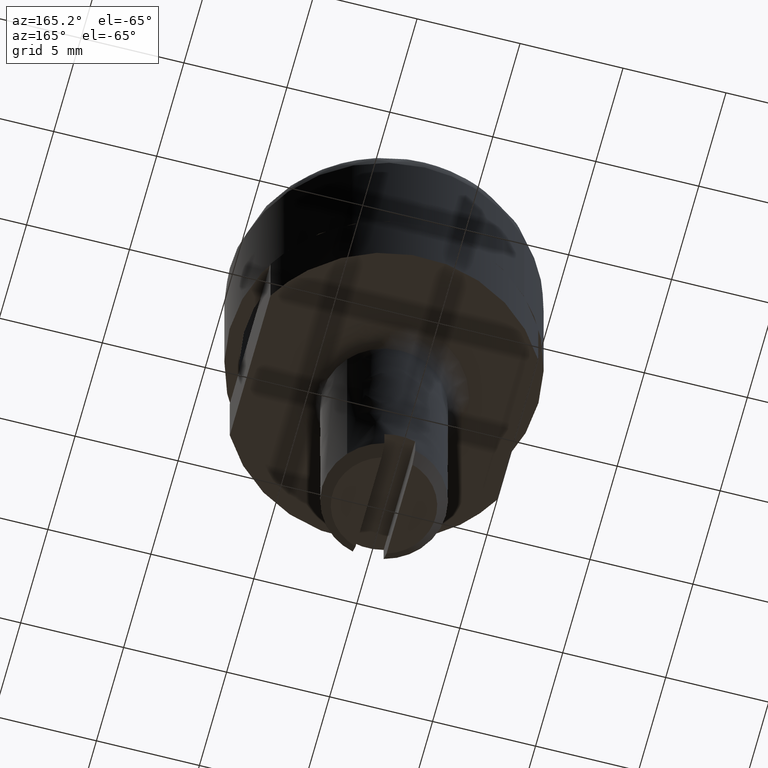
[diagram: clean part render]
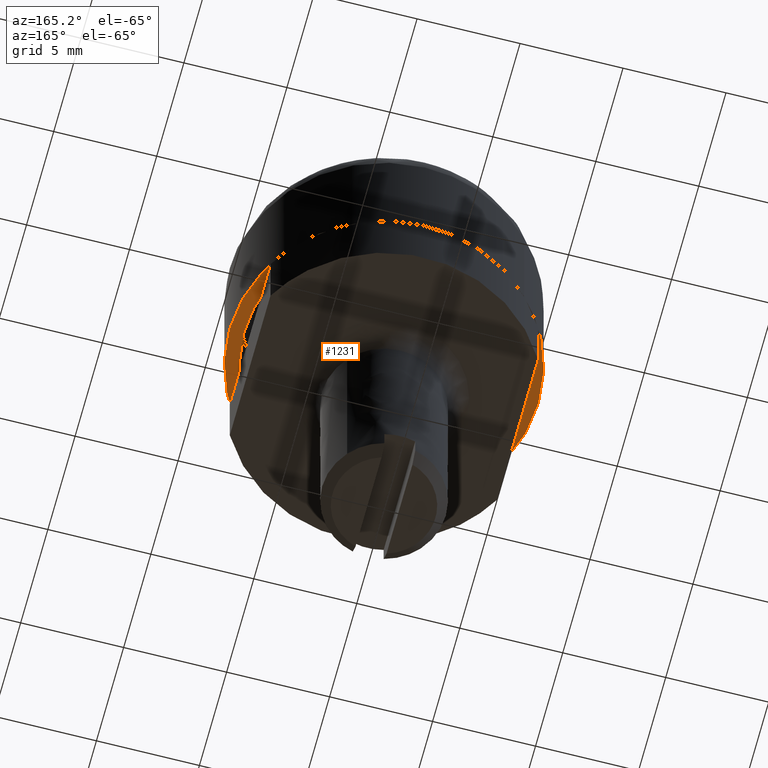
[diagram: same view with one face highlighted and labeled with its STEP entity id]
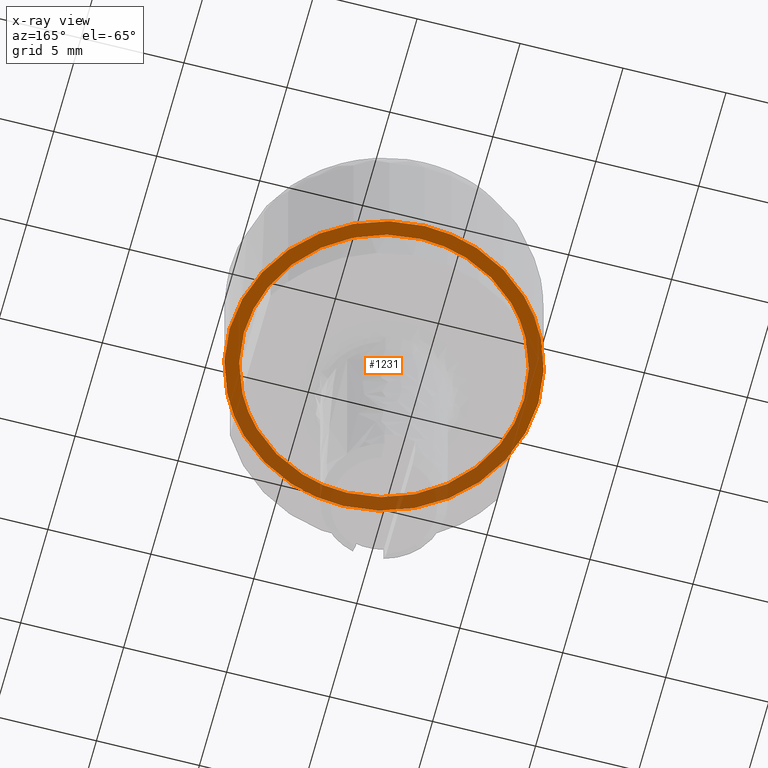
[diagram: x-ray of the same camera — body ghosted, the highlighted face saturated]
A machine part, auxiliary view. The second image highlights one B-rep face of the part: STEP entity #1231.
The next image is the same camera in x-ray: the body ghosted, the highlighted face saturated — about 41% of this face is hidden behind the body in this view.
In plain terms, the highlighted face is a freeform B-spline surface patch.
Its self-contained STEP definition (entity closure, byte-faithful):
#914=CARTESIAN_POINT('',(-4.932545663887593,4.680811072878793,0.0));
#915=VERTEX_POINT('',#914);
#921=CARTESIAN_POINT('',(0.000000286769174,6.799999999999995,0.0));
#922=VERTEX_POINT('',#921);
#923=CARTESIAN_POINT('',(-4.932545663887593,4.680811072878793,0.0));
#924=CARTESIAN_POINT('',(-4.714912347619990,4.910166091634215,0.0));
#925=CARTESIAN_POINT('',(-4.236954883401083,5.348174126833015,0.0));
#926=CARTESIAN_POINT('',(-3.439677311985118,5.892667430260793,0.0));
#927=CARTESIAN_POINT('',(-2.612063875126257,6.299107404190968,0.0));
#928=CARTESIAN_POINT('',(-1.889300119238368,6.543863059924363,0.0));
#929=CARTESIAN_POINT('',(-1.034746525995126,6.742395398111656,0.0));
#930=CARTESIAN_POINT('',(-0.431155632645939,6.800051775636590,0.0));
#931=CARTESIAN_POINT('',(0.000000286769174,6.799999999999995,0.0));
#932=B_SPLINE_CURVE_WITH_KNOTS('',3,(#923,#924,#925,#926,#927,#928,#929,#930,#931),.UNSPECIFIED.,.F.,.U.,(4,1,1,1,1,1,4),(4.990039E-009,0.948531333499347,1.940184939206418,2.888713104333475,3.707901624160262,4.225285891425965,5.518740586311926),.UNSPECIFIED.);
#933=EDGE_CURVE('',#915,#922,#932,.T.);
#935=CARTESIAN_POINT('',(6.800000000000000,0.0,0.0));
#936=VERTEX_POINT('',#935);
#937=CARTESIAN_POINT('',(0.000000286769174,6.799999999999995,0.0));
#938=CARTESIAN_POINT('',(0.417244344295607,6.800047325130983,0.0));
#939=CARTESIAN_POINT('',(1.126538177255468,6.734497145074095,0.0));
#940=CARTESIAN_POINT('',(2.126197797199553,6.480838133158592,0.0));
#941=CARTESIAN_POINT('',(2.850275435846903,6.188685520264716,0.0));
#942=CARTESIAN_POINT('',(3.549905462858949,5.814727373327851,0.0));
#943=CARTESIAN_POINT('',(4.138583930866588,5.416133431944608,0.0));
#944=CARTESIAN_POINT('',(4.822247767233452,4.822754273552527,0.0));
#945=CARTESIAN_POINT('',(5.386020270343711,4.185169255291944,0.0));
#946=CARTESIAN_POINT('',(5.873546371291537,3.455506358265204,0.0));
#947=CARTESIAN_POINT('',(6.262624717510242,2.699963852938090,0.0));
#948=CARTESIAN_POINT('',(6.535121922447948,1.938388062796501,0.0));
#949=CARTESIAN_POINT('',(6.745378261817022,1.015273404557894,0.0));
#950=CARTESIAN_POINT('',(6.800043587585367,0.403337723911392,0.0));
#951=CARTESIAN_POINT('',(6.800000000000000,0.0,0.0));
#952=B_SPLINE_CURVE_WITH_KNOTS('',3,(#937,#938,#939,#940,#941,#942,#943,#944,#945,#946,#947,#948,#949,#950,#951),.UNSPECIFIED.,.F.,.U.,(4,1,1,1,1,1,1,1,1,1,1,1,4),(0.000000017237889,1.251723370826092,2.127941067955904,3.087603355722131,3.588296059865767,4.506229548907771,5.215547964612382,6.300374684145703,7.051409290417492,7.844175674494007,8.845564706493141,9.471429594500629,10.681431616617321),.UNSPECIFIED.);
#953=EDGE_CURVE('',#922,#936,#952,.T.);
#955=CARTESIAN_POINT('',(4.932545663887543,-4.680811072878747,0.0));
#956=VERTEX_POINT('',#955);
#957=CARTESIAN_POINT('',(6.800000000000000,0.0,0.0));
#958=CARTESIAN_POINT('',(6.800007914878444,-0.282334395524479,0.0));
#959=CARTESIAN_POINT('',(6.763946193497152,-0.860445636910743,0.0));
#960=CARTESIAN_POINT('',(6.598731904197352,-1.720473206763375,0.0));
#961=CARTESIAN_POINT('',(6.339962090634941,-2.500532818326803,0.0));
#962=CARTESIAN_POINT('',(5.993205833017306,-3.244884842324742,0.0));
#963=CARTESIAN_POINT('',(5.548376059577596,-3.967797531974441,0.0));
#964=CARTESIAN_POINT('',(5.154665493333746,-4.446765098286518,0.0));
#965=CARTESIAN_POINT('',(4.932545663887543,-4.680811072878747,0.0));
#966=B_SPLINE_CURVE_WITH_KNOTS('',3,(#957,#958,#959,#960,#961,#962,#963,#964,#965),.UNSPECIFIED.,.F.,.U.,(4,1,1,1,1,1,4),(4.127542E-009,0.847003301440743,1.734343272202446,2.621673944381036,3.307348116324191,4.194687560928379,5.162691478323008),.UNSPECIFIED.);
#967=EDGE_CURVE('',#936,#956,#966,.T.);
#1073=CARTESIAN_POINT('',(-0.000000286769450,-6.799999999999993,0.0));
#1074=VERTEX_POINT('',#1073);
#1075=CARTESIAN_POINT('',(4.932545663887543,-4.680811072878747,0.0));
#1076=CARTESIAN_POINT('',(4.695130568718285,-4.931020375776530,0.0));
#1077=CARTESIAN_POINT('',(4.171428785223509,-5.404869612836414,0.0));
#1078=CARTESIAN_POINT('',(3.315314786257923,-5.965958183405297,0.0));
#1079=CARTESIAN_POINT('',(2.333695541565671,-6.417532225965711,0.0));
#1080=CARTESIAN_POINT('',(1.235956245217417,-6.724464236658458,0.0));
#1081=CARTESIAN_POINT('',(0.416780522118094,-6.800034993220883,0.0));
#1082=CARTESIAN_POINT('',(-0.000000286769450,-6.799999999999993,0.0));
#1083=B_SPLINE_CURVE_WITH_KNOTS('',3,(#1075,#1076,#1077,#1078,#1079,#1080,#1081,#1082),.UNSPECIFIED.,.F.,.U.,(4,1,1,1,1,4),(4.988460E-009,1.034763151721214,2.112646557074670,3.061175266426393,4.268401539935868,5.518740586312186),.UNSPECIFIED.);
#1084=EDGE_CURVE('',#956,#1074,#1083,.T.);
#1086=CARTESIAN_POINT('',(-6.800000000000000,0.0,0.0));
#1087=VERTEX_POINT('',#1086);
#1088=CARTESIAN_POINT('',(-0.000000286769450,-6.799999999999993,0.0));
#1089=CARTESIAN_POINT('',(-0.486793500365736,-6.800093671322914,0.0));
#1090=CARTESIAN_POINT('',(-1.182155841994502,-6.724989087726920,0.0));
#1091=CARTESIAN_POINT('',(-2.177615531105174,-6.459342290289362,0.0));
#1092=CARTESIAN_POINT('',(-2.967494401287906,-6.143470628086659,0.0));
#1093=CARTESIAN_POINT('',(-3.728940360868344,-5.705912668706158,0.0));
#1094=CARTESIAN_POINT('',(-4.409745620349870,-5.197742662826835,0.0));
#1095=CARTESIAN_POINT('',(-4.965017044805882,-4.669085175292995,0.0));
#1096=CARTESIAN_POINT('',(-5.472293439099191,-4.058631230656217,0.0));
#1097=CARTESIAN_POINT('',(-5.919164586440645,-3.385400870243343,0.0));
#1098=CARTESIAN_POINT('',(-6.294555876449387,-2.622218661925441,0.0));
#1099=CARTESIAN_POINT('',(-6.555062947657506,-1.857318598583554,0.0));
#1100=CARTESIAN_POINT('',(-6.747278310810687,-1.001368174908280,0.0));
#1101=CARTESIAN_POINT('',(-6.800035771668408,-0.389426936226279,0.0));
#1102=CARTESIAN_POINT('',(-6.800000000000000,0.0,0.0));
#1103=B_SPLINE_CURVE_WITH_KNOTS('',3,(#1088,#1089,#1090,#1091,#1092,#1093,#1094,#1095,#1096,#1097,#1098,#1099,#1100,#1101,#1102),.UNSPECIFIED.,.F.,.U.,(4,1,1,1,1,1,1,1,1,1,1,1,4),(0.000000017248396,1.460351782376973,2.086214836539144,3.087603355729955,4.005542579444466,4.714860703157688,5.632782677260050,6.300374684150556,7.093137298766982,8.052798215301955,8.845564706495193,9.513157607459192,10.681431616617109),.UNSPECIFIED.);
#1104=EDGE_CURVE('',#1074,#1087,#1103,.T.);
#1106=CARTESIAN_POINT('',(-6.800000000000000,0.0,0.0));
#1107=CARTESIAN_POINT('',(-6.800010877549735,0.309223033663248,0.0));
#1108=CARTESIAN_POINT('',(-6.754996433981941,0.968002905477444,0.0));
#1109=CARTESIAN_POINT('',(-6.557837558040491,1.877300981631680,0.0));
#1110=CARTESIAN_POINT('',(-6.271524898790199,2.661709504493808,0.0));
#1111=CARTESIAN_POINT('',(-5.921321662191361,3.374439236591033,0.0));
#1112=CARTESIAN_POINT('',(-5.490685272635090,4.042788782186998,0.0));
#1113=CARTESIAN_POINT('',(-5.117640330783454,4.485769593887964,0.0));
#1114=CARTESIAN_POINT('',(-4.932545663887593,4.680811072878793,0.0));
#1115=B_SPLINE_CURVE_WITH_KNOTS('',3,(#1106,#1107,#1108,#1109,#1110,#1111,#1112,#1113,#1114),.UNSPECIFIED.,.F.,.U.,(4,1,1,1,1,1,4),(4.126534E-009,0.927669964210613,1.976344836257897,2.783008444970508,3.428348862476418,4.356023286435321,5.162691478323034),.UNSPECIFIED.);
#1116=EDGE_CURVE('',#1087,#915,#1115,.T.);
#1122=CARTESIAN_POINT('',(-8.249249970927089,-8.249249970927078,0.0));
#1123=CARTESIAN_POINT('',(8.249250373258443,-8.249249970927078,0.0));
#1124=CARTESIAN_POINT('',(-8.249249970927089,8.249250373258427,0.0));
#1125=CARTESIAN_POINT('',(8.249250373258443,8.249250373258427,0.0));
#1126=B_SPLINE_SURFACE_WITH_KNOTS('',1,1,((#1122,#1124),(#1123,#1125)),.UNSPECIFIED.,.F.,.F.,.U.,(2,2),(2,2),(0.0,16.498500344185530),(0.0,16.498500344185508),.UNSPECIFIED.);
#1127=CARTESIAN_POINT('',(-7.500000000000000,0.0,0.0));
#1128=VERTEX_POINT('',#1127);
#1129=CARTESIAN_POINT('',(-5.440307707149858,5.162659246110332,-4.302114E-016));
#1130=VERTEX_POINT('',#1129);
#1131=CARTESIAN_POINT('',(-7.500000000000000,0.0,0.0));
#1132=CARTESIAN_POINT('',(-7.500009349291555,0.326225816527274,-2.718484E-017));
#1133=CARTESIAN_POINT('',(-7.454469182849019,1.023165444534629,-8.526177E-017));
#1134=CARTESIAN_POINT('',(-7.270154673125730,1.911264202181624,-1.592682E-016));
#1135=CARTESIAN_POINT('',(-6.985109567290990,2.770539397258085,-2.308728E-016));
#1136=CARTESIAN_POINT('',(-6.609667893890370,3.595597831710558,-2.996261E-016));
#1137=CARTESIAN_POINT('',(-6.075046540080582,4.436237499643954,-3.696777E-016));
#1138=CARTESIAN_POINT('',(-5.644454825888032,4.947538028853219,-4.122851E-016));
#1139=CARTESIAN_POINT('',(-5.440307707149858,5.162659246110332,-4.302114E-016));
#1140=B_SPLINE_CURVE_WITH_KNOTS('',3,(#1131,#1132,#1133,#1134,#1135,#1136,#1137,#1138,#1139),.UNSPECIFIED.,.F.,.U.,(4,1,1,1,1,1,4),(3.951627E-009,0.978679313290159,2.090819025260926,2.713618455353122,3.692294719166312,4.804435557686742,5.694144992032093),.UNSPECIFIED.);
#1141=EDGE_CURVE('',#1128,#1130,#1140,.T.);
#1142=ORIENTED_EDGE('',*,*,#1141,.T.);
#1143=CARTESIAN_POINT('',(0.000000416591547,7.499999999999988,0.0));
#1144=VERTEX_POINT('',#1143);
#1145=CARTESIAN_POINT('',(-5.440307707149858,5.162659246110332,-4.302114E-016));
#1146=CARTESIAN_POINT('',(-5.222088710532297,5.392623772653946,-4.129550E-016));
#1147=CARTESIAN_POINT('',(-4.709876810978301,5.868057628753888,-3.724500E-016));
#1148=CARTESIAN_POINT('',(-3.862153234445573,6.458892787673727,-3.054133E-016));
#1149=CARTESIAN_POINT('',(-2.897079545659081,6.944297873865178,-2.290967E-016));
#1150=CARTESIAN_POINT('',(-1.933653383999820,7.270566165105355,-1.529105E-016));
#1151=CARTESIAN_POINT('',(-0.951065740578369,7.459740223933074,-7.520889E-017));
#1152=CARTESIAN_POINT('',(-0.317022573245680,7.500009679471833,-2.506970E-017));
#1153=CARTESIAN_POINT('',(0.000000416591547,7.499999999999988,0.0));
#1154=B_SPLINE_CURVE_WITH_KNOTS('',3,(#1145,#1146,#1147,#1148,#1149,#1150,#1151,#1152,#1153),.UNSPECIFIED.,.F.,.U.,(4,1,1,1,1,1,4),(4.377245E-009,0.951069379091908,2.092353971124072,3.090971792670792,4.184706727930962,5.135776862650095,6.086846336362240),.UNSPECIFIED.);
#1155=EDGE_CURVE('',#1130,#1144,#1154,.T.);
#1156=ORIENTED_EDGE('',*,*,#1155,.T.);
#1157=CARTESIAN_POINT('',(7.500000000000000,0.0,0.0));
#1158=VERTEX_POINT('',#1157);
#1159=CARTESIAN_POINT('',(0.000000416591547,7.499999999999988,0.0));
#1160=CARTESIAN_POINT('',(0.475536609552828,7.500057812419370,0.0));
#1161=CARTESIAN_POINT('',(1.273184140552888,7.423870547720845,0.0));
#1162=CARTESIAN_POINT('',(2.284745891376791,7.160547509723658,0.0));
#1163=CARTESIAN_POINT('',(3.230492862855162,6.795770914453764,0.0));
#1164=CARTESIAN_POINT('',(4.038638603198545,6.347740008080844,0.0));
#1165=CARTESIAN_POINT('',(4.813893454742874,5.769025563525314,0.0));
#1166=CARTESIAN_POINT('',(5.423556571706696,5.206171587461093,0.0));
#1167=CARTESIAN_POINT('',(6.041501732512944,4.480855132315438,0.0));
#1168=CARTESIAN_POINT('',(6.592378031032567,3.628407463068746,0.0));
#1169=CARTESIAN_POINT('',(7.004963219957057,2.734867049630617,0.0));
#1170=CARTESIAN_POINT('',(7.255496058207909,1.943981995296713,0.0));
#1171=CARTESIAN_POINT('',(7.445814992653824,1.058432710072871,0.0));
#1172=CARTESIAN_POINT('',(7.500043508848298,0.429515812222126,0.0));
#1173=CARTESIAN_POINT('',(7.500000000000000,0.0,0.0));
#1174=B_SPLINE_CURVE_WITH_KNOTS('',3,(#1159,#1160,#1161,#1162,#1163,#1164,#1165,#1166,#1167,#1168,#1169,#1170,#1171,#1172,#1173),.UNSPECIFIED.,.F.,.U.,(4,1,1,1,1,1,1,1,1,1,1,1,4),(0.000000015620786,1.426598191322354,2.393011650967836,3.129325977458560,4.463891978558602,5.154185833317311,6.028545206963695,6.948941699479565,8.007388366739017,9.065840876396418,9.894191920430480,10.492452199684360,11.780990697089980),.UNSPECIFIED.);
#1175=EDGE_CURVE('',#1144,#1158,#1174,.T.);
#1176=ORIENTED_EDGE('',*,*,#1175,.T.);
#1177=CARTESIAN_POINT('',(5.440307707149886,-5.162659246110358,-4.302114E-016));
#1178=VERTEX_POINT('',#1177);
#1179=CARTESIAN_POINT('',(7.500000000000000,0.0,0.0));
#1180=CARTESIAN_POINT('',(7.500088213680544,-0.519006060131342,-4.324948E-017));
#1181=CARTESIAN_POINT('',(7.425815502801059,-1.230738805576294,-1.025591E-016));
#1182=CARTESIAN_POINT('',(7.183519682475236,-2.195013138392926,-1.829134E-016));
#1183=CARTESIAN_POINT('',(6.930175920195614,-2.908841508231447,-2.423977E-016));
#1184=CARTESIAN_POINT('',(6.578616690169818,-3.629691764848314,-3.024672E-016));
#1185=CARTESIAN_POINT('',(6.099481871343737,-4.398109426869542,-3.665004E-016));
#1186=CARTESIAN_POINT('',(5.705713855386739,-4.883013026296797,-4.069081E-016));
#1187=CARTESIAN_POINT('',(5.440307707149886,-5.162659246110358,-4.302114E-016));
#1188=B_SPLINE_CURVE_WITH_KNOTS('',3,(#1179,#1180,#1181,#1182,#1183,#1184,#1185,#1186,#1187),.UNSPECIFIED.,.F.,.U.,(4,1,1,1,1,1,4),(3.949450E-009,1.556993379426682,2.135307053138295,2.980526632852952,3.825751676933598,4.537522753745162,5.694144992032110),.UNSPECIFIED.);
#1189=EDGE_CURVE('',#1158,#1178,#1188,.T.);
#1190=ORIENTED_EDGE('',*,*,#1189,.T.);
#1191=CARTESIAN_POINT('',(-0.000000416591392,-7.499999999999989,0.0));
#1192=VERTEX_POINT('',#1191);
#1193=CARTESIAN_POINT('',(5.440307707149886,-5.162659246110358,-4.302114E-016));
#1194=CARTESIAN_POINT('',(5.102099414855846,-5.519139239776589,-4.034664E-016));
#1195=CARTESIAN_POINT('',(4.451625183996033,-6.081858989718738,-3.520279E-016));
#1196=CARTESIAN_POINT('',(3.362454112384193,-6.737866114998577,-2.658979E-016));
#1197=CARTESIAN_POINT('',(2.375531279752988,-7.139807882328730,-1.878535E-016));
#1198=CARTESIAN_POINT('',(1.236369641624899,-7.427387502431705,-9.777030E-017));
#1199=CARTESIAN_POINT('',(0.475537522846897,-7.500050677224364,-3.760483E-017));
#1200=CARTESIAN_POINT('',(-0.000000416591392,-7.499999999999989,0.0));
#1201=B_SPLINE_CURVE_WITH_KNOTS('',3,(#1193,#1194,#1195,#1196,#1197,#1198,#1199,#1200),.UNSPECIFIED.,.F.,.U.,(4,1,1,1,1,4),(4.373078E-009,1.474158015700461,2.567892938308909,3.804278552569246,4.660242158029103,6.086846336362130),.UNSPECIFIED.);
#1202=EDGE_CURVE('',#1178,#1192,#1201,.T.);
#1203=ORIENTED_EDGE('',*,*,#1202,.T.);
#1204=CARTESIAN_POINT('',(-0.000000416591392,-7.499999999999989,0.0));
#1205=CARTESIAN_POINT('',(-0.521560789383968,-7.500090774948173,0.0));
#1206=CARTESIAN_POINT('',(-1.288512618180953,-7.419653708454768,0.0));
#1207=CARTESIAN_POINT('',(-2.328090298627462,-7.145633852888490,0.0));
#1208=CARTESIAN_POINT('',(-3.131070763265400,-6.835896887341662,0.0));
#1209=CARTESIAN_POINT('',(-4.052758510489891,-6.343266449796471,0.0));
#1210=CARTESIAN_POINT('',(-5.005005512591840,-5.637078756321559,0.0));
#1211=CARTESIAN_POINT('',(-5.841208146608553,-4.753330837683376,0.0));
#1212=CARTESIAN_POINT('',(-6.423945450985551,-3.903898269606918,0.0));
#1213=CARTESIAN_POINT('',(-6.860502746665181,-3.074970382257372,0.0));
#1214=CARTESIAN_POINT('',(-7.200926064614072,-2.184375967619451,0.0));
#1215=CARTESIAN_POINT('',(-7.443400960102397,-1.119796288265268,0.0));
#1216=CARTESIAN_POINT('',(-7.500022674665376,-0.383494140595584,0.0));
#1217=CARTESIAN_POINT('',(-7.500000000000000,0.0,0.0));
#1218=B_SPLINE_CURVE_WITH_KNOTS('',3,(#1204,#1205,#1206,#1207,#1208,#1209,#1210,#1211,#1212,#1213,#1214,#1215,#1216,#1217),.UNSPECIFIED.,.F.,.U.,(4,1,1,1,1,1,1,1,1,1,1,4),(0.000000015636850,1.564656585250138,2.300974099711505,3.221366033394832,4.141756273498146,5.430311126671938,6.764864990997800,7.777294134209186,8.513605073152650,9.572055197386280,10.630511055444259,11.780990697089999),.UNSPECIFIED.);
#1219=EDGE_CURVE('',#1192,#1128,#1218,.T.);
#1220=ORIENTED_EDGE('',*,*,#1219,.T.);
#1221=EDGE_LOOP('',(#1142,#1156,#1176,#1190,#1203,#1220));
#1222=FACE_OUTER_BOUND('',#1221,.T.);
#1223=ORIENTED_EDGE('',*,*,#953,.F.);
#1224=ORIENTED_EDGE('',*,*,#933,.F.);
#1225=ORIENTED_EDGE('',*,*,#1116,.F.);
#1226=ORIENTED_EDGE('',*,*,#1104,.F.);
#1227=ORIENTED_EDGE('',*,*,#1084,.F.);
#1228=ORIENTED_EDGE('',*,*,#967,.F.);
#1229=EDGE_LOOP('',(#1223,#1224,#1225,#1226,#1227,#1228));
#1230=FACE_BOUND('',#1229,.T.);
#1231=ADVANCED_FACE('',(#1222,#1230),#1126,.F.);